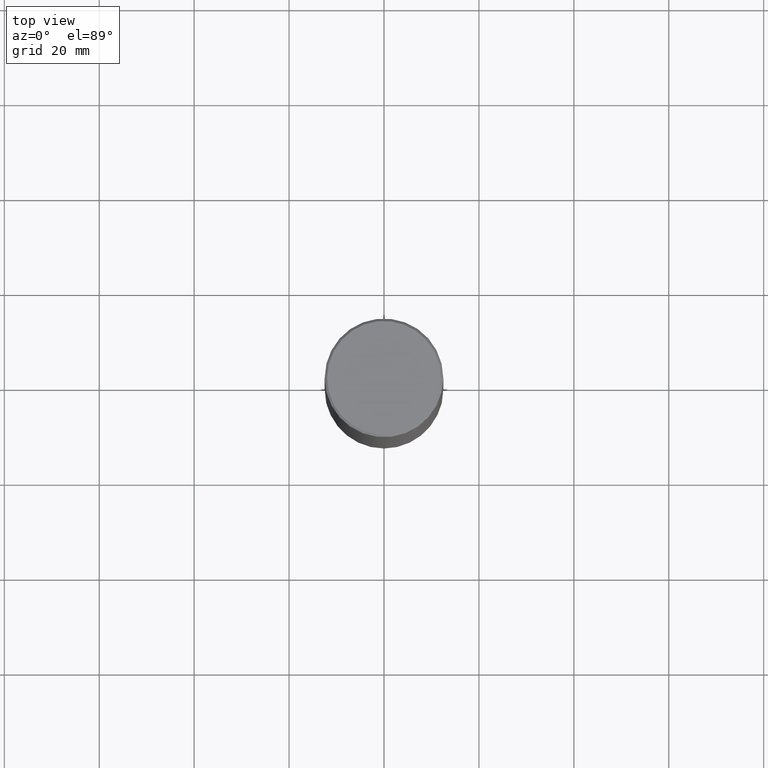
[diagram: clean part render]
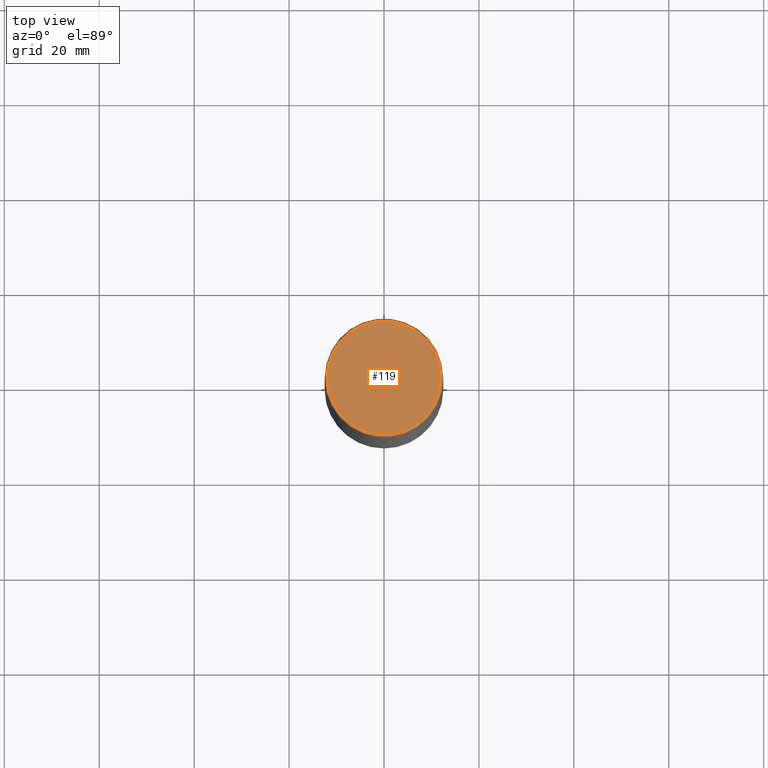
[diagram: same view with one face highlighted and labeled with its STEP entity id]
A machine part, top view. The second image highlights one B-rep face of the part: STEP entity #119.
In plain terms, the highlighted planar face has unit normal (0, -0, -1).
Its self-contained STEP definition (entity closure, byte-faithful):
#47 = AXIS2_PLACEMENT_3D ( 'NONE', #329, #156, #274 ) ;
#78 = EDGE_CURVE ( 'NONE', #79, #246, #390, .T. ) ;
#79 = VERTEX_POINT ( 'NONE', #157 ) ;
#119 = ADVANCED_FACE ( 'NONE', ( #228 ), #342, .F. ) ;
#122 = DIRECTION ( 'NONE',  ( -1.000000000000000000, 6.982962677686265922E-15, -4.876176775795935793E-29 ) ) ;
#128 = CARTESIAN_POINT ( 'NONE',  ( -3.235939384439181382E-45, 4.620063828179386567E-31, 1.323238871931127589E-16 ) ) ;
#156 = DIRECTION ( 'NONE',  ( -2.445468806185136597E-29, 3.491481338843145583E-15, 1.000000000000000000 ) ) ;
#157 = CARTESIAN_POINT ( 'NONE',  ( 0.4721499999999999031, -3.342703923013974974E-15, 1.323238871931359563E-16 ) ) ;
#167 = EDGE_CURVE ( 'NONE', #246, #79, #173, .T. ) ;
#173 = CIRCLE ( 'NONE', #47, 0.4721499999999999031 ) ;
#181 = DIRECTION ( 'NONE',  ( 2.438088387897960049E-29, -3.491481338843145188E-15, -1.000000000000000000 ) ) ;
#197 = AXIS2_PLACEMENT_3D ( 'NONE', #221, #181, #122 ) ;
#221 = CARTESIAN_POINT ( 'NONE',  ( 3.297005828269569575E-15, 0.4721499999999999031, -1.582340970538234485E-15 ) ) ;
#228 = FACE_OUTER_BOUND ( 'NONE', #247, .T. ) ;
#245 = ORIENTED_EDGE ( 'NONE', *, *, #167, .T. ) ;
#246 = VERTEX_POINT ( 'NONE', #344 ) ;
#247 = EDGE_LOOP ( 'NONE', ( #245, #322 ) ) ;
#274 = DIRECTION ( 'NONE',  ( 1.000000000000000000, -6.982962677686266711E-15, 4.875605319575679544E-29 ) ) ;
#314 = DIRECTION ( 'NONE',  ( 1.000000000000000000, -6.982962677686266711E-15, 4.875605319575679544E-29 ) ) ;
#322 = ORIENTED_EDGE ( 'NONE', *, *, #78, .T. ) ;
#329 = CARTESIAN_POINT ( 'NONE',  ( -3.235939384439181382E-45, 4.620063828179386567E-31, 1.323238871931127589E-16 ) ) ;
#342 = PLANE ( 'NONE',  #197 ) ;
#344 = CARTESIAN_POINT ( 'NONE',  ( -0.4721499999999999031, 3.331920641658001618E-15, 1.323238871930895614E-16 ) ) ;
#362 = DIRECTION ( 'NONE',  ( -2.445468806185136597E-29, 3.491481338843145583E-15, 1.000000000000000000 ) ) ;
#385 = AXIS2_PLACEMENT_3D ( 'NONE', #128, #362, #314 ) ;
#390 = CIRCLE ( 'NONE', #385, 0.4721499999999999031 ) ;